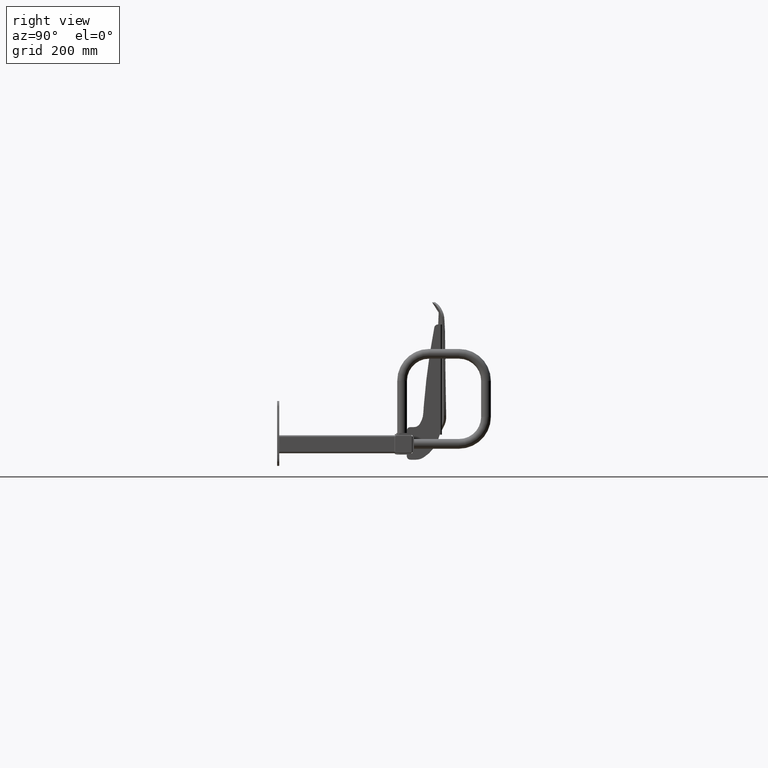
[diagram: clean part render]
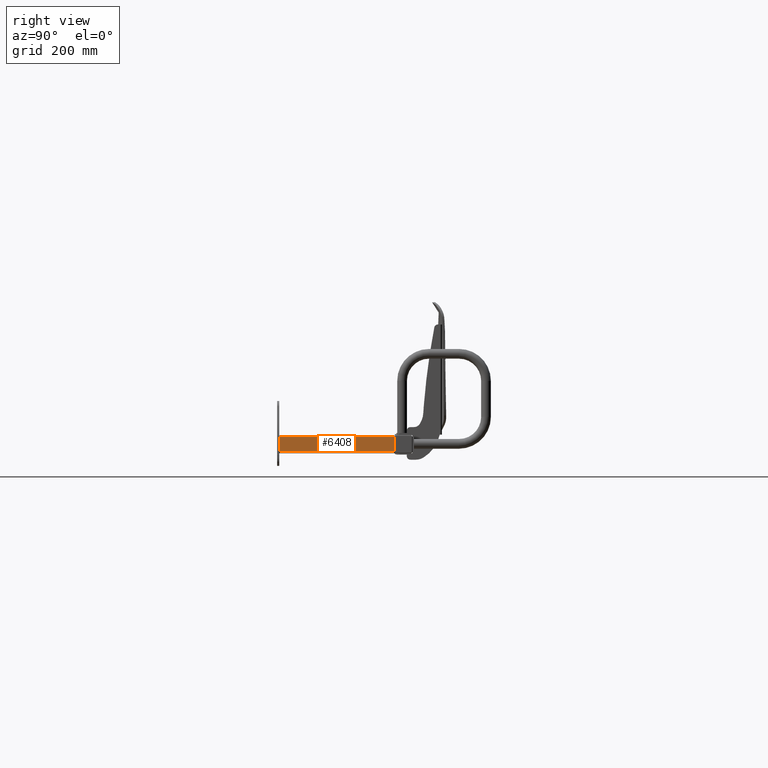
[diagram: same view with one face highlighted and labeled with its STEP entity id]
A machine part, right view. The second image highlights one B-rep face of the part: STEP entity #6408.
In plain terms, the highlighted planar face has unit normal (-1, -0, 0).
Its self-contained STEP definition (entity closure, byte-faithful):
#1834 = FACE_OUTER_BOUND ( 'NONE', #9211, .T. ) ;
#2952 = DIRECTION ( 'NONE',  ( -1.000000000000000000, -6.938893903907228400E-016, 0.0000000000000000000 ) ) ;
#2954 = CARTESIAN_POINT ( 'NONE',  ( 700.0000000000001100, 6.000000000000002700, 25.00000000000000000 ) ) ;
#2956 = PLANE ( 'NONE',  #6812 ) ;
#2958 = DIRECTION ( 'NONE',  ( 6.938893903907228400E-016, -1.000000000000000000, 0.0000000000000000000 ) ) ;
#3670 = CARTESIAN_POINT ( 'NONE',  ( 699.9999999999998900, 326.0000000000000000, 20.00000000000000400 ) ) ;
#6408 = ADVANCED_FACE ( 'NONE', ( #1834 ), #2956, .F. ) ;
#6812 = AXIS2_PLACEMENT_3D ( 'NONE', #2954, #2952, #2958 ) ;
#7211 = VERTEX_POINT ( 'NONE', #10493 ) ;
#7240 = VERTEX_POINT ( 'NONE', #10520 ) ;
#7269 = VERTEX_POINT ( 'NONE', #10549 ) ;
#7500 = EDGE_CURVE ( 'NONE', #13497, #7240, #11611, .T. ) ;
#7501 = EDGE_CURVE ( 'NONE', #7211, #7269, #11613, .T. ) ;
#7504 = EDGE_CURVE ( 'NONE', #13497, #7269, #11620, .T. ) ;
#7505 = EDGE_CURVE ( 'NONE', #7240, #7211, #11621, .T. ) ;
#9184 = ORIENTED_EDGE ( 'NONE', *, *, #7505, .T. ) ;
#9185 = ORIENTED_EDGE ( 'NONE', *, *, #7500, .T. ) ;
#9189 = ORIENTED_EDGE ( 'NONE', *, *, #7501, .T. ) ;
#9190 = ORIENTED_EDGE ( 'NONE', *, *, #7504, .F. ) ;
#9211 = EDGE_LOOP ( 'NONE', ( #9184, #9189, #9190, #9185 ) ) ;
#10493 = CARTESIAN_POINT ( 'NONE',  ( 700.0000000000001100, 6.000000000000002700, -19.99999999999999600 ) ) ;
#10520 = CARTESIAN_POINT ( 'NONE',  ( 700.0000000000001100, 6.000000000000002700, 20.00000000000000000 ) ) ;
#10549 = CARTESIAN_POINT ( 'NONE',  ( 699.9999999999998900, 326.0000000000000000, -19.99999999999999600 ) ) ;
#10609 = CARTESIAN_POINT ( 'NONE',  ( 700.0000000000001100, 6.000000000000002700, 20.00000000000000000 ) ) ;
#10614 = CARTESIAN_POINT ( 'NONE',  ( 699.9999999999998900, 326.0000000000000000, -19.99999999999999600 ) ) ;
#10616 = DIRECTION ( 'NONE',  ( 6.938893903907228400E-016, -1.000000000000000000, -0.0000000000000000000 ) ) ;
#10617 = DIRECTION ( 'NONE',  ( -6.938893903907228400E-016, 1.000000000000000000, 0.0000000000000000000 ) ) ;
#10618 = CARTESIAN_POINT ( 'NONE',  ( 699.9999999999998900, 326.0000000000000000, 25.00000000000000000 ) ) ;
#10619 = DIRECTION ( 'NONE',  ( -0.0000000000000000000, -0.0000000000000000000, -1.000000000000000000 ) ) ;
#10627 = CARTESIAN_POINT ( 'NONE',  ( 700.0000000000001100, 6.000000000000002700, 25.00000000000000000 ) ) ;
#10628 = DIRECTION ( 'NONE',  ( -0.0000000000000000000, -0.0000000000000000000, -1.000000000000000000 ) ) ;
#11611 = LINE ( 'NONE', #10609, #11616 ) ;
#11613 = LINE ( 'NONE', #10614, #11618 ) ;
#11616 = VECTOR ( 'NONE', #10616, 1000.000000000000000 ) ;
#11618 = VECTOR ( 'NONE', #10617, 1000.000000000000000 ) ;
#11620 = LINE ( 'NONE', #10618, #11622 ) ;
#11621 = LINE ( 'NONE', #10627, #11624 ) ;
#11622 = VECTOR ( 'NONE', #10619, 1000.000000000000000 ) ;
#11624 = VECTOR ( 'NONE', #10628, 1000.000000000000000 ) ;
#13497 = VERTEX_POINT ( 'NONE', #3670 ) ;